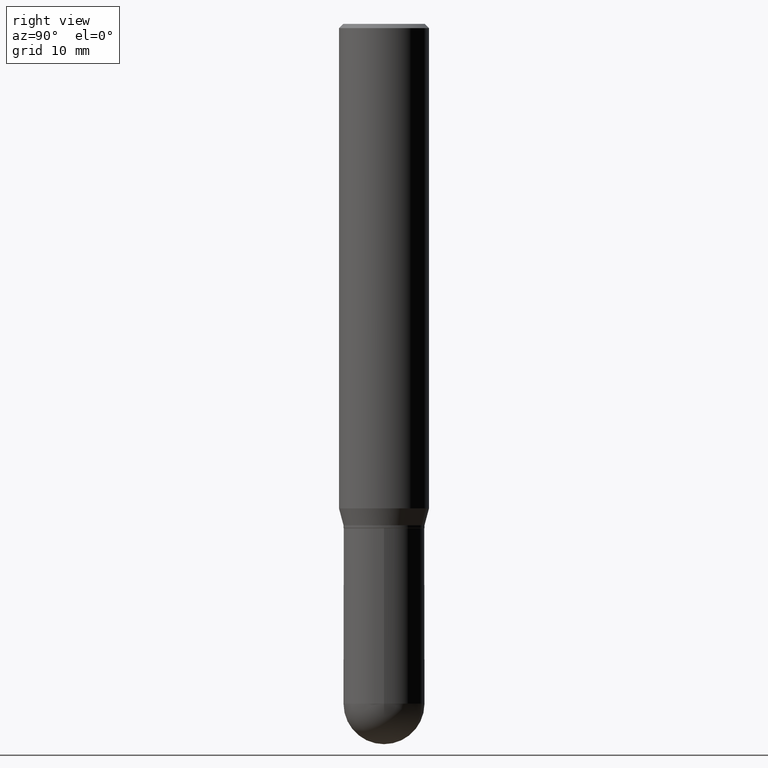
[diagram: clean part render]
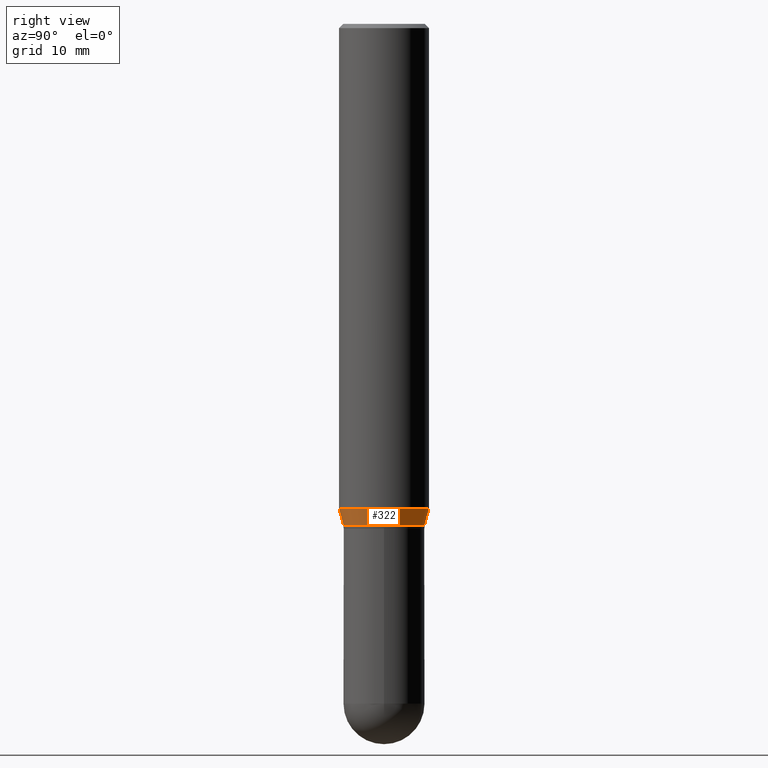
[diagram: same view with one face highlighted and labeled with its STEP entity id]
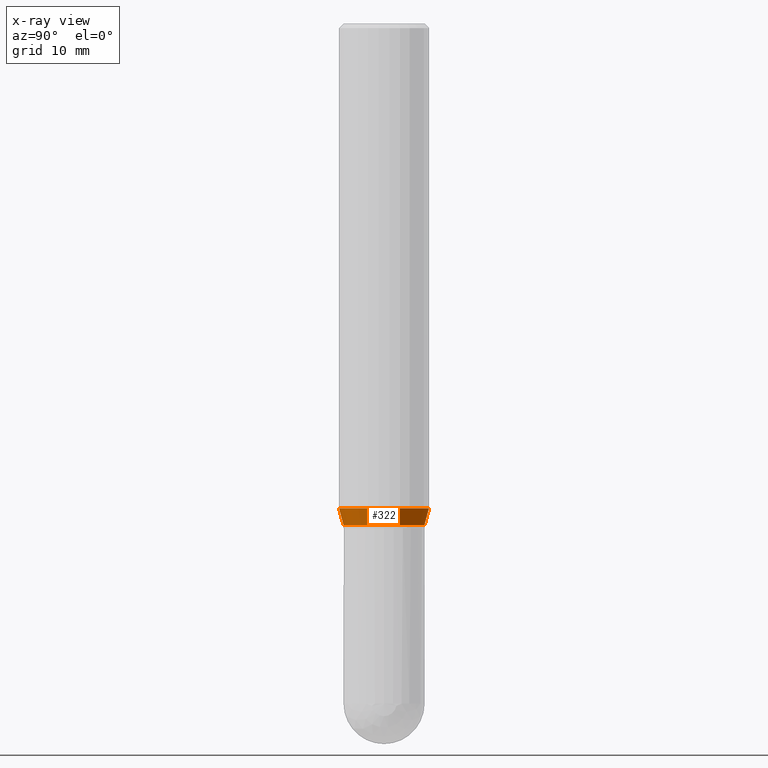
[diagram: x-ray of the same camera — body ghosted, the highlighted face saturated]
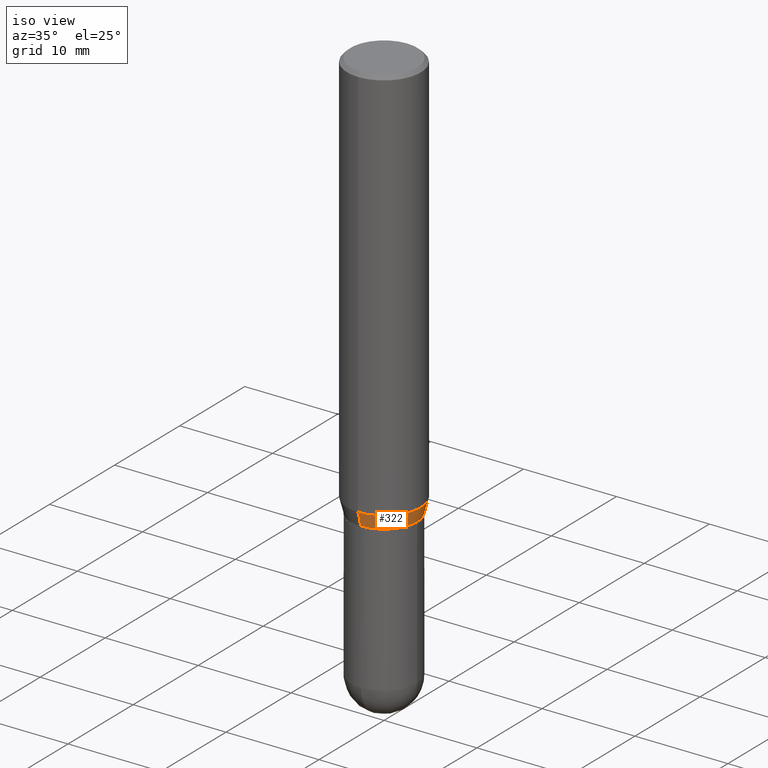
[diagram: same view with one face highlighted and labeled with its STEP entity id]
A machine part, right view. The second image highlights one B-rep face of the part: STEP entity #322.
The next image is the same camera in x-ray: the body ghosted, the highlighted face saturated — about 0% of this face is hidden behind the body in this view.
A second angle (iso view) of the same face is appended — the face is thin or edge-on in the first view.
In plain terms, the highlighted conical surface has half-angle 15 deg.
Its self-contained STEP definition (entity closure, byte-faithful):
#9 = DIRECTION ( 'NONE',  ( -2.445561747179421972E-29, 3.491348242049456041E-15, 1.000000000000000000 ) ) ;
#28 = AXIS2_PLACEMENT_3D ( 'NONE', #489, #9, #326 ) ;
#51 = VERTEX_POINT ( 'NONE', #424 ) ;
#59 = EDGE_CURVE ( 'NONE', #51, #116, #433, .T. ) ;
#79 = VERTEX_POINT ( 'NONE', #325 ) ;
#98 = DIRECTION ( 'NONE',  ( 1.839019923739597160E-15, 0.2588190451025245142, 0.9659258262890673130 ) ) ;
#101 = FACE_OUTER_BOUND ( 'NONE', #429, .T. ) ;
#105 = EDGE_CURVE ( 'NONE', #51, #79, #134, .T. ) ;
#109 = DIRECTION ( 'NONE',  ( -1.807323732225326984E-15, -0.2588190451025177419, 0.9659258262890690894 ) ) ;
#116 = VERTEX_POINT ( 'NONE', #210 ) ;
#125 = DIRECTION ( 'NONE',  ( -2.445561747179421972E-29, 3.491348242049456041E-15, 1.000000000000000000 ) ) ;
#134 = CIRCLE ( 'NONE', #427, 0.1405999999999999195 ) ;
#179 = CONICAL_SURFACE ( 'NONE', #251, 0.1405999999999999195, 0.2617993877991497964 ) ;
#184 = CARTESIAN_POINT ( 'NONE',  ( 1.110223024625197561E-15, 0.1562499999999941436, -1.681593404861547514 ) ) ;
#210 = CARTESIAN_POINT ( 'NONE',  ( -1.091087918388437956E-15, -0.1562500000000058842, -1.681593404861546404 ) ) ;
#221 = EDGE_CURVE ( 'NONE', #116, #475, #465, .T. ) ;
#251 = AXIS2_PLACEMENT_3D ( 'NONE', #255, #419, #264 ) ;
#255 = CARTESIAN_POINT ( 'NONE',  ( 4.255277440092194484E-29, -6.074945941166053740E-15, -1.739999999999999991 ) ) ;
#259 = VECTOR ( 'NONE', #109, 39.37007874015748143 ) ;
#264 = DIRECTION ( 'NONE',  ( -6.982962677686266711E-15, -1.000000000000000000, 3.885985766236507752E-15 ) ) ;
#302 = LINE ( 'NONE', #455, #448 ) ;
#312 = CARTESIAN_POINT ( 'NONE',  ( -9.818045524826459157E-16, -0.1406000000000059980, -1.739999999999999547 ) ) ;
#322 = ADVANCED_FACE ( 'NONE', ( #101 ), #179, .T. ) ;
#325 = CARTESIAN_POINT ( 'NONE',  ( 1.054623055551970126E-15, 0.1405999999999938410, -1.740000000000000657 ) ) ;
#326 = DIRECTION ( 'NONE',  ( -6.982962677686265133E-15, -1.000000000000000000, 3.496765431890256920E-15 ) ) ;
#363 = ORIENTED_EDGE ( 'NONE', *, *, #59, .F. ) ;
#365 = ORIENTED_EDGE ( 'NONE', *, *, #105, .T. ) ;
#397 = EDGE_CURVE ( 'NONE', #79, #475, #302, .T. ) ;
#402 = CARTESIAN_POINT ( 'NONE',  ( 4.255277440092194484E-29, -6.074945941166053740E-15, -1.739999999999999991 ) ) ;
#419 = DIRECTION ( 'NONE',  ( -2.445561747179421972E-29, 3.491348242049456041E-15, 1.000000000000000000 ) ) ;
#424 = CARTESIAN_POINT ( 'NONE',  ( -9.818045524826459157E-16, -0.1406000000000059980, -1.739999999999999547 ) ) ;
#427 = AXIS2_PLACEMENT_3D ( 'NONE', #402, #125, #435 ) ;
#429 = EDGE_LOOP ( 'NONE', ( #365, #480, #464, #363 ) ) ;
#433 = LINE ( 'NONE', #312, #259 ) ;
#435 = DIRECTION ( 'NONE',  ( -6.982962677686266711E-15, -1.000000000000000000, 3.885985766236507752E-15 ) ) ;
#448 = VECTOR ( 'NONE', #98, 39.37007874015748143 ) ;
#455 = CARTESIAN_POINT ( 'NONE',  ( 9.990230864787428877E-16, 0.1405999999999938410, -1.740000000000000657 ) ) ;
#464 = ORIENTED_EDGE ( 'NONE', *, *, #221, .F. ) ;
#465 = CIRCLE ( 'NONE', #28, 0.1562500000000000000 ) ;
#475 = VERTEX_POINT ( 'NONE', #184 ) ;
#480 = ORIENTED_EDGE ( 'NONE', *, *, #397, .T. ) ;
#489 = CARTESIAN_POINT ( 'NONE',  ( 4.112440505238597920E-29, -5.871028177905320877E-15, -1.681593404861546848 ) ) ;